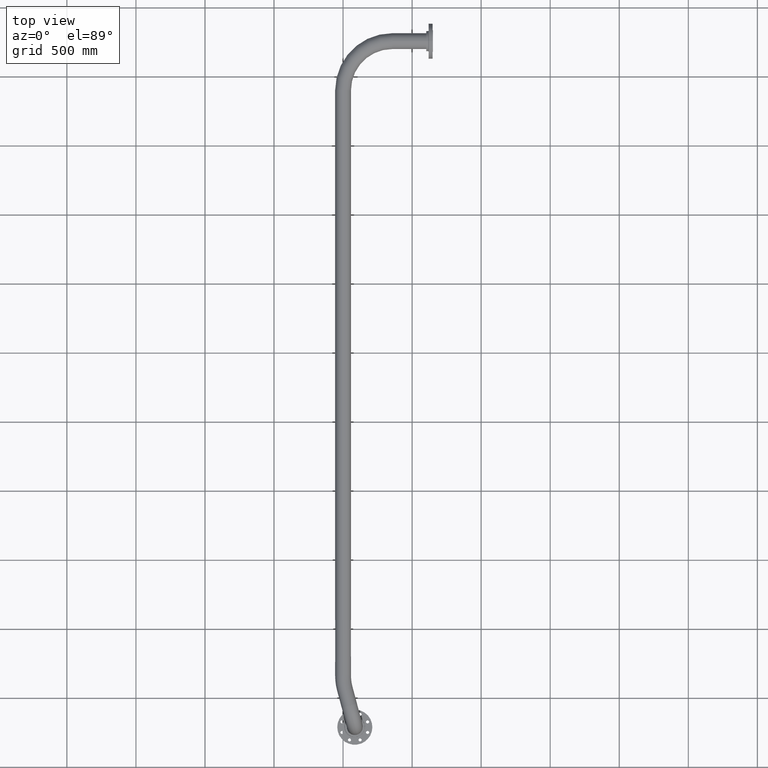
[diagram: clean part render]
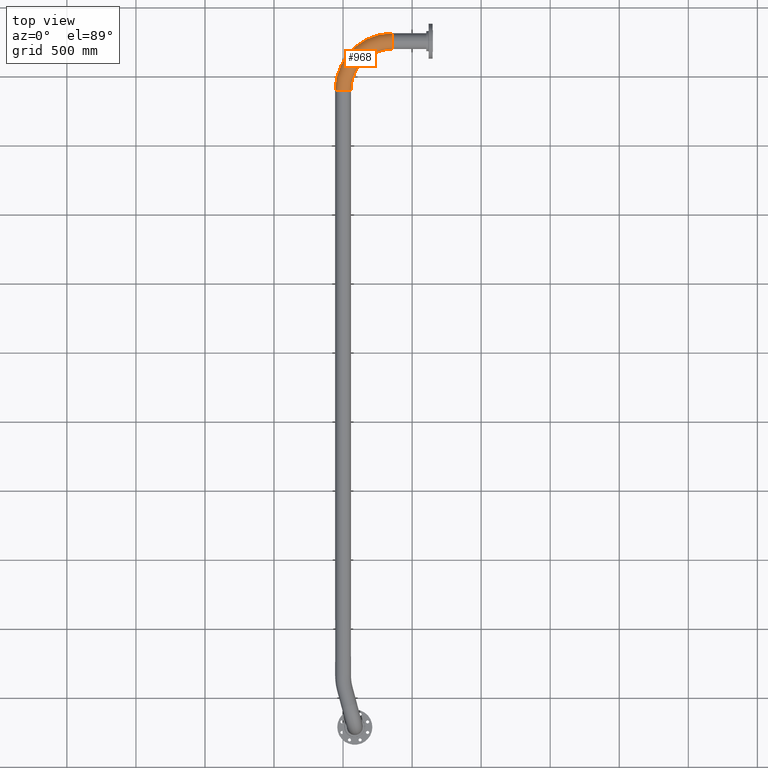
[diagram: same view with one face highlighted and labeled with its STEP entity id]
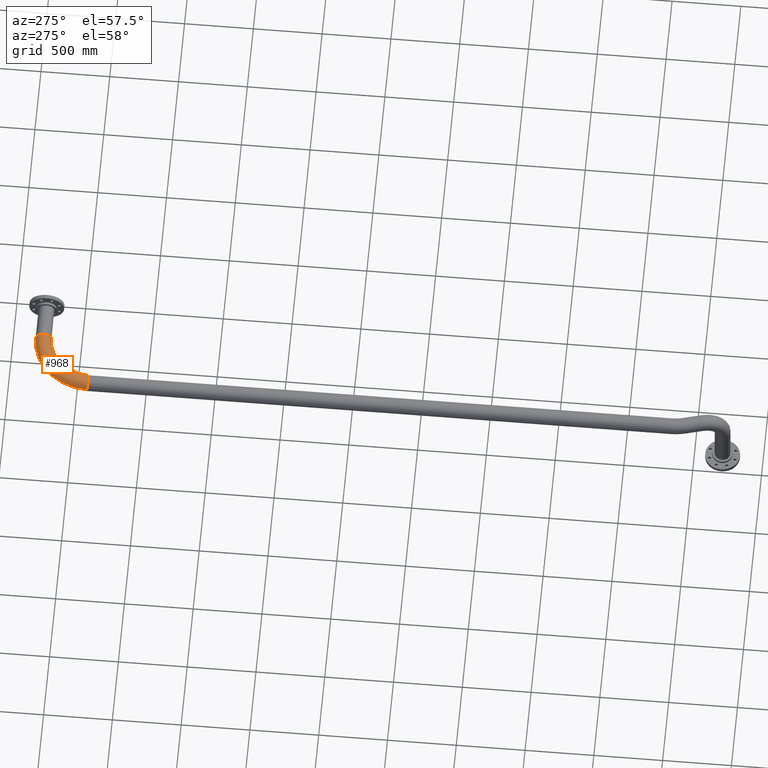
[diagram: same view with one face highlighted and labeled with its STEP entity id]
A machine part, top view. The second image highlights one B-rep face of the part: STEP entity #968.
A second angle (auxiliary view) of the same face is appended — the face is thin or edge-on in the first view.
In plain terms, the highlighted toroidal blend (fillet) surface has major radius 356 mm and minor (blend) radius 57.15 mm.
Its self-contained STEP definition (entity closure, byte-faithful):
#4 = VERTEX_POINT ( 'NONE', #182 ) ;
#44 = CARTESIAN_POINT ( 'NONE',  ( -4715.999999999966349, -356.0000000000005684, 7.888609052210118054E-28 ) ) ;
#157 = DIRECTION ( 'NONE',  ( -1.000000000000000000, 6.712647246081559806E-19, -1.922848456476224333E-30 ) ) ;
#182 = CARTESIAN_POINT ( 'NONE',  ( -4715.999999999966349, 57.15000000000000568, 4.332677809523325907E-27 ) ) ;
#215 = AXIS2_PLACEMENT_3D ( 'NONE', #832, #157, #845 ) ;
#246 = DIRECTION ( 'NONE',  ( 2.650142136768027125E-15, -1.000000000000000000, 2.540120025324014445E-30 ) ) ;
#254 = CIRCLE ( 'NONE', #942, 298.8500000000007049 ) ;
#280 = EDGE_CURVE ( 'NONE', #423, #1473, #388, .T. ) ;
#282 = VERTEX_POINT ( 'NONE', #1973 ) ;
#388 = CIRCLE ( 'NONE', #1968, 57.15000000000003411 ) ;
#391 = CIRCLE ( 'NONE', #895, 57.15000000000003411 ) ;
#423 = VERTEX_POINT ( 'NONE', #2518 ) ;
#599 = EDGE_CURVE ( 'NONE', #1473, #2041, #391, .T. ) ;
#653 = DIRECTION ( 'NONE',  ( -1.873544649899918802E-30, 2.540120025324032662E-30, -1.000000000000000000 ) ) ;
#687 = DIRECTION ( 'NONE',  ( 0.000000000000000000, 1.000000000000000000, 2.541699080027853651E-30 ) ) ;
#832 = CARTESIAN_POINT ( 'NONE',  ( -4715.999999999966349, 3.165684441250805020E-15, 7.888609052210118054E-28 ) ) ;
#845 = DIRECTION ( 'NONE',  ( 0.000000000000000000, -1.000000000000000000, 2.540120025324013745E-30 ) ) ;
#895 = AXIS2_PLACEMENT_3D ( 'NONE', #1009, #1630, #2519 ) ;
#939 = CIRCLE ( 'NONE', #215, 57.15000000000000568 ) ;
#942 = AXIS2_PLACEMENT_3D ( 'NONE', #2604, #653, #687 ) ;
#968 = ADVANCED_FACE ( 'NONE', ( #2059 ), #2210, .T. ) ;
#980 = ORIENTED_EDGE ( 'NONE', *, *, #280, .F. ) ;
#1009 = CARTESIAN_POINT ( 'NONE',  ( -5071.999999999967258, -356.0000000000015348, 7.888609052210118054E-28 ) ) ;
#1023 = ORIENTED_EDGE ( 'NONE', *, *, #1505, .T. ) ;
#1256 = DIRECTION ( 'NONE',  ( -1.873544649899918802E-30, 2.540120025324032662E-30, -1.000000000000000000 ) ) ;
#1276 = CARTESIAN_POINT ( 'NONE',  ( -5071.999999999965439, -356.0000000000015348, -57.15000000000000568 ) ) ;
#1287 = DIRECTION ( 'NONE',  ( -1.000000000000000000, -9.643294153508151391E-60, 1.873544649899918452E-30 ) ) ;
#1473 = VERTEX_POINT ( 'NONE', #1276 ) ;
#1505 = EDGE_CURVE ( 'NONE', #4, #282, #939, .T. ) ;
#1617 = AXIS2_PLACEMENT_3D ( 'NONE', #44, #1945, #1928 ) ;
#1630 = DIRECTION ( 'NONE',  ( 2.650142136768027125E-15, -1.000000000000000000, 2.540120025324014445E-30 ) ) ;
#1657 = EDGE_CURVE ( 'NONE', #423, #4, #1662, .T. ) ;
#1662 = CIRCLE ( 'NONE', #1617, 413.1500000000007731 ) ;
#1710 = EDGE_CURVE ( 'NONE', #2041, #282, #254, .T. ) ;
#1773 = CARTESIAN_POINT ( 'NONE',  ( -5014.849999999967622, -356.0000000000013642, 6.998856457127943756E-15 ) ) ;
#1805 = AXIS2_PLACEMENT_3D ( 'NONE', #2756, #1256, #1287 ) ;
#1928 = DIRECTION ( 'NONE',  ( 0.000000000000000000, 1.000000000000000000, 2.540120025324033012E-30 ) ) ;
#1945 = DIRECTION ( 'NONE',  ( -1.873544649899918802E-30, 2.540120025324032662E-30, -1.000000000000000000 ) ) ;
#1968 = AXIS2_PLACEMENT_3D ( 'NONE', #2195, #246, #2230 ) ;
#1973 = CARTESIAN_POINT ( 'NONE',  ( -4715.999999999966349, -57.15000000000000568, 6.998856457131718456E-15 ) ) ;
#2041 = VERTEX_POINT ( 'NONE', #1773 ) ;
#2059 = FACE_OUTER_BOUND ( 'NONE', #2790, .T. ) ;
#2195 = CARTESIAN_POINT ( 'NONE',  ( -5071.999999999967258, -356.0000000000015348, 7.888609052210118054E-28 ) ) ;
#2210 = TOROIDAL_SURFACE ( 'NONE', #1805, 356.0000000000007390, 57.15000000000000568 ) ;
#2230 = DIRECTION ( 'NONE',  ( 1.000000000000000000, 2.913971193241878794E-15, 1.922848456476216276E-30 ) ) ;
#2283 = ORIENTED_EDGE ( 'NONE', *, *, #1710, .F. ) ;
#2330 = ORIENTED_EDGE ( 'NONE', *, *, #1657, .T. ) ;
#2518 = CARTESIAN_POINT ( 'NONE',  ( -5129.149999999965075, -356.0000000000017053, 1.562915877327157858E-27 ) ) ;
#2519 = DIRECTION ( 'NONE',  ( 1.000000000000000000, 2.913971193241878794E-15, 1.922848456476216276E-30 ) ) ;
#2604 = CARTESIAN_POINT ( 'NONE',  ( -4715.999999999966349, -356.0000000000005684, 6.998856457127854615E-15 ) ) ;
#2613 = ORIENTED_EDGE ( 'NONE', *, *, #599, .F. ) ;
#2756 = CARTESIAN_POINT ( 'NONE',  ( -4715.999999999966349, -356.0000000000005684, 7.888609052210118054E-28 ) ) ;
#2790 = EDGE_LOOP ( 'NONE', ( #980, #2330, #1023, #2283, #2613 ) ) ;